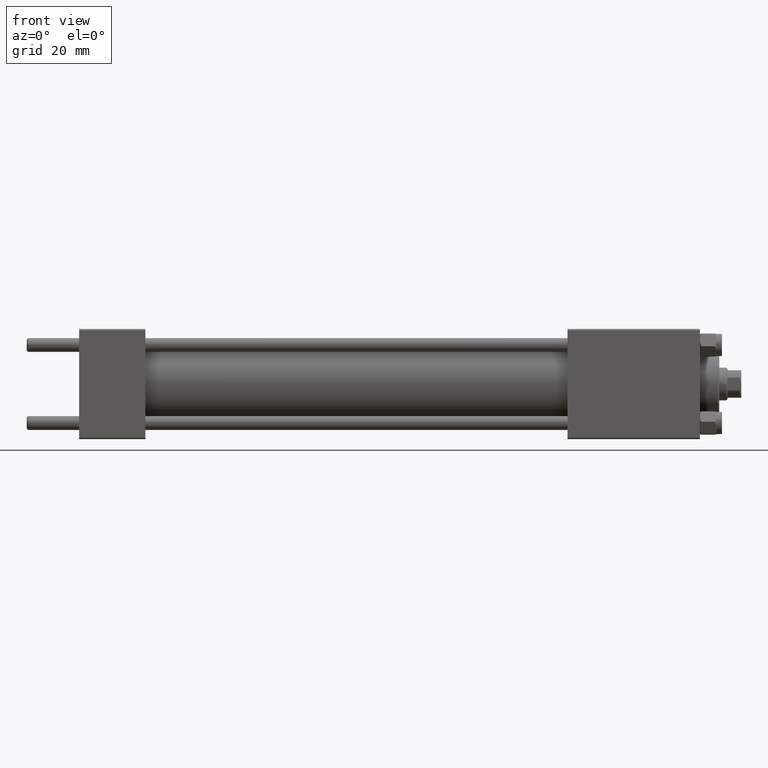
[diagram: clean part render]
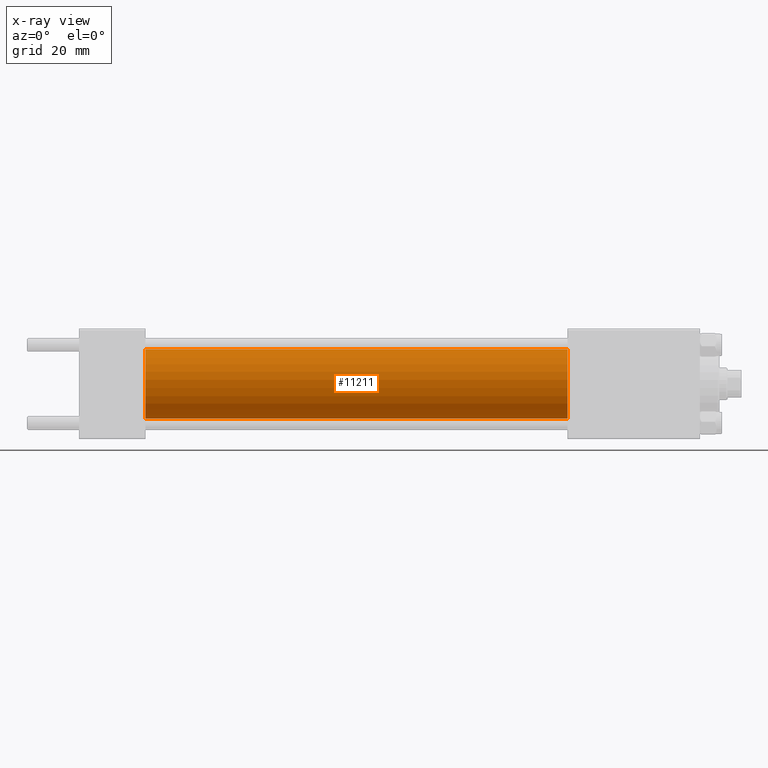
[diagram: x-ray — body ghosted, one internal face saturated and labeled with its STEP entity id]
A machine part, front view, then the same camera in x-ray: the body is ghosted and one INTERNAL B-rep face — a face not visible from any outside direction — is saturated and labeled: STEP entity #11211.
In plain terms, the highlighted cylindrical surface (edge-blend (fillet) strip) has radius 12.5 mm, axis along (-1, -0, -0).
Its self-contained STEP definition (entity closure, byte-faithful):
#1733 = ORIENTED_EDGE ( 'NONE', *, *, #17567, .T. ) ;
#2042 = EDGE_CURVE ( 'NONE', #47554, #29516, #40916, .T. ) ;
#2432 = EDGE_CURVE ( 'NONE', #49465, #29516, #19290, .T. ) ;
#3548 = CARTESIAN_POINT ( 'NONE',  ( 177.0000000000000000, 1.530808498934191127E-15, -12.49999999999999645 ) ) ;
#3691 = CARTESIAN_POINT ( 'NONE',  ( 24.00000000000000000, 0.000000000000000000, 0.000000000000000000 ) ) ;
#3756 = VECTOR ( 'NONE', #30149, 1000.000000000000000 ) ;
#5574 = ORIENTED_EDGE ( 'NONE', *, *, #12379, .F. ) ;
#9694 = CARTESIAN_POINT ( 'NONE',  ( 177.0000000000000000, 0.000000000000000000, 0.000000000000000000 ) ) ;
#11094 = DIRECTION ( 'NONE',  ( 0.000000000000000000, 0.000000000000000000, 1.000000000000000000 ) ) ;
#11211 = ADVANCED_FACE ( 'NONE', ( #37850 ), #18649, .F. ) ;
#12379 = EDGE_CURVE ( 'NONE', #16658, #47554, #18856, .T. ) ;
#12908 = AXIS2_PLACEMENT_3D ( 'NONE', #34058, #49435, #11094 ) ;
#13009 = CIRCLE ( 'NONE', #41973, 12.49999999999999645 ) ;
#14602 = DIRECTION ( 'NONE',  ( -1.000000000000000000, -0.000000000000000000, -0.000000000000000000 ) ) ;
#16658 = VERTEX_POINT ( 'NONE', #29101 ) ;
#17567 = EDGE_CURVE ( 'NONE', #16658, #49465, #13009, .T. ) ;
#18649 = CYLINDRICAL_SURFACE ( 'NONE', #12908, 12.49999999999999645 ) ;
#18856 = LINE ( 'NONE', #22156, #21783 ) ;
#19152 = AXIS2_PLACEMENT_3D ( 'NONE', #3691, #42066, #34251 ) ;
#19290 = LINE ( 'NONE', #34947, #3756 ) ;
#21783 = VECTOR ( 'NONE', #14602, 1000.000000000000000 ) ;
#22156 = CARTESIAN_POINT ( 'NONE',  ( 177.0000000000000000, 0.000000000000000000, 12.49999999999999645 ) ) ;
#23224 = ORIENTED_EDGE ( 'NONE', *, *, #2432, .T. ) ;
#26241 = ORIENTED_EDGE ( 'NONE', *, *, #2042, .F. ) ;
#28867 = DIRECTION ( 'NONE',  ( 1.000000000000000000, 0.000000000000000000, 0.000000000000000000 ) ) ;
#29101 = CARTESIAN_POINT ( 'NONE',  ( 177.0000000000000000, 0.000000000000000000, 12.49999999999999645 ) ) ;
#29516 = VERTEX_POINT ( 'NONE', #40100 ) ;
#30149 = DIRECTION ( 'NONE',  ( -1.000000000000000000, -0.000000000000000000, -0.000000000000000000 ) ) ;
#30857 = EDGE_LOOP ( 'NONE', ( #1733, #23224, #26241, #5574 ) ) ;
#34058 = CARTESIAN_POINT ( 'NONE',  ( 177.0000000000000000, 0.000000000000000000, 0.000000000000000000 ) ) ;
#34251 = DIRECTION ( 'NONE',  ( 0.000000000000000000, 0.000000000000000000, -1.000000000000000000 ) ) ;
#34947 = CARTESIAN_POINT ( 'NONE',  ( 177.0000000000000000, 1.530808498934191127E-15, -12.49999999999999645 ) ) ;
#37163 = CARTESIAN_POINT ( 'NONE',  ( 24.00000000000000000, 0.000000000000000000, 12.49999999999999645 ) ) ;
#37850 = FACE_OUTER_BOUND ( 'NONE', #30857, .T. ) ;
#40100 = CARTESIAN_POINT ( 'NONE',  ( 24.00000000000000000, 1.530808498934191127E-15, -12.49999999999999645 ) ) ;
#40229 = DIRECTION ( 'NONE',  ( 0.000000000000000000, 0.000000000000000000, -1.000000000000000000 ) ) ;
#40916 = CIRCLE ( 'NONE', #19152, 12.49999999999999645 ) ;
#41973 = AXIS2_PLACEMENT_3D ( 'NONE', #9694, #28867, #40229 ) ;
#42066 = DIRECTION ( 'NONE',  ( 1.000000000000000000, 0.000000000000000000, 0.000000000000000000 ) ) ;
#47554 = VERTEX_POINT ( 'NONE', #37163 ) ;
#49435 = DIRECTION ( 'NONE',  ( -1.000000000000000000, -0.000000000000000000, -0.000000000000000000 ) ) ;
#49465 = VERTEX_POINT ( 'NONE', #3548 ) ;